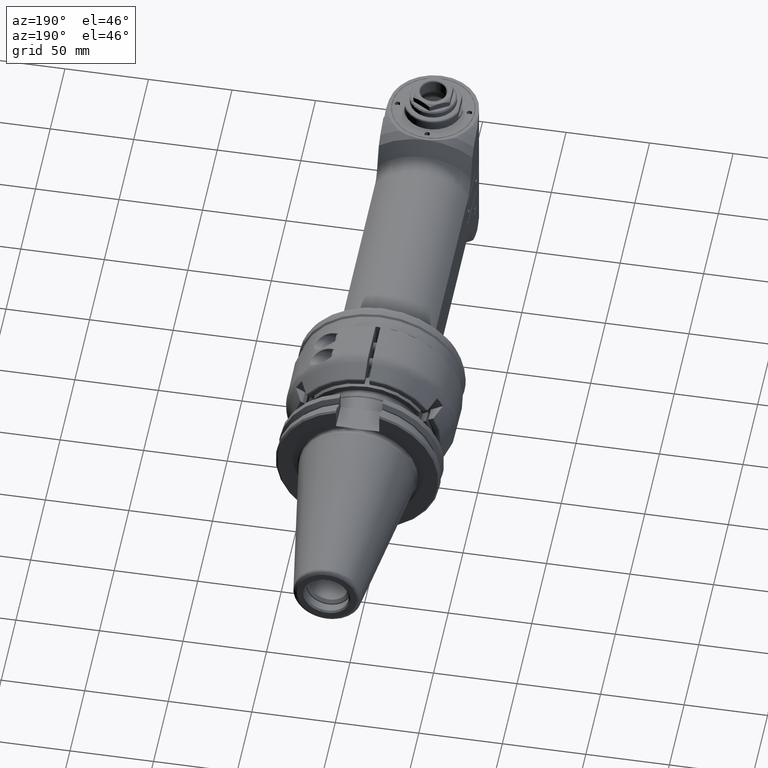
[diagram: clean part render]
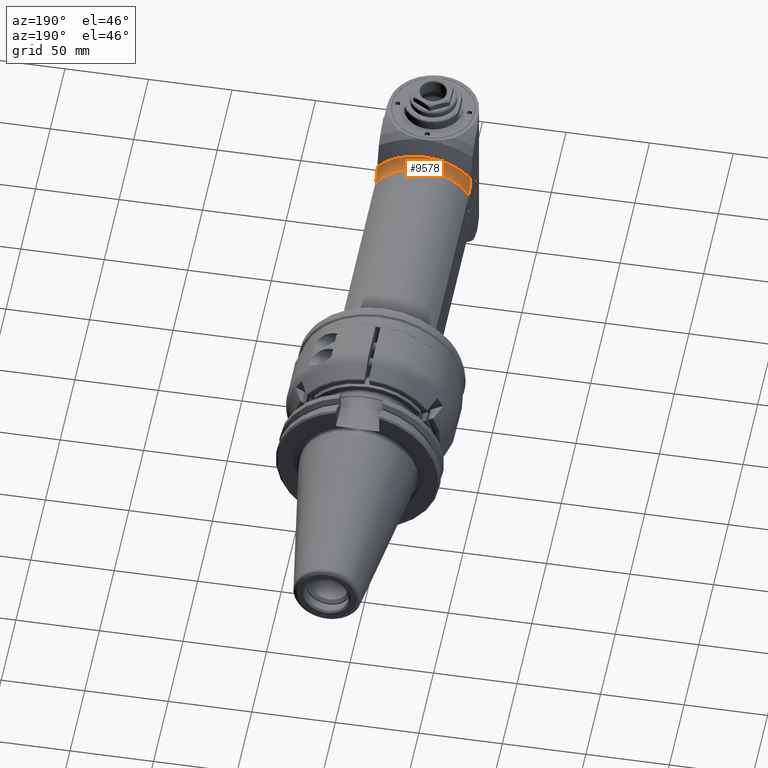
[diagram: same view with one face highlighted and labeled with its STEP entity id]
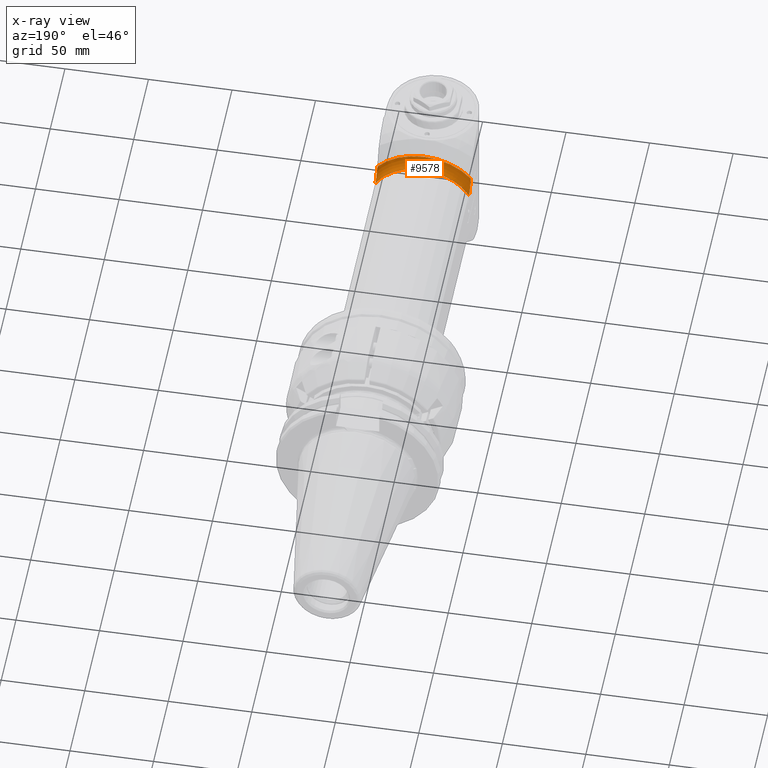
[diagram: x-ray of the same camera — body ghosted, the highlighted face saturated]
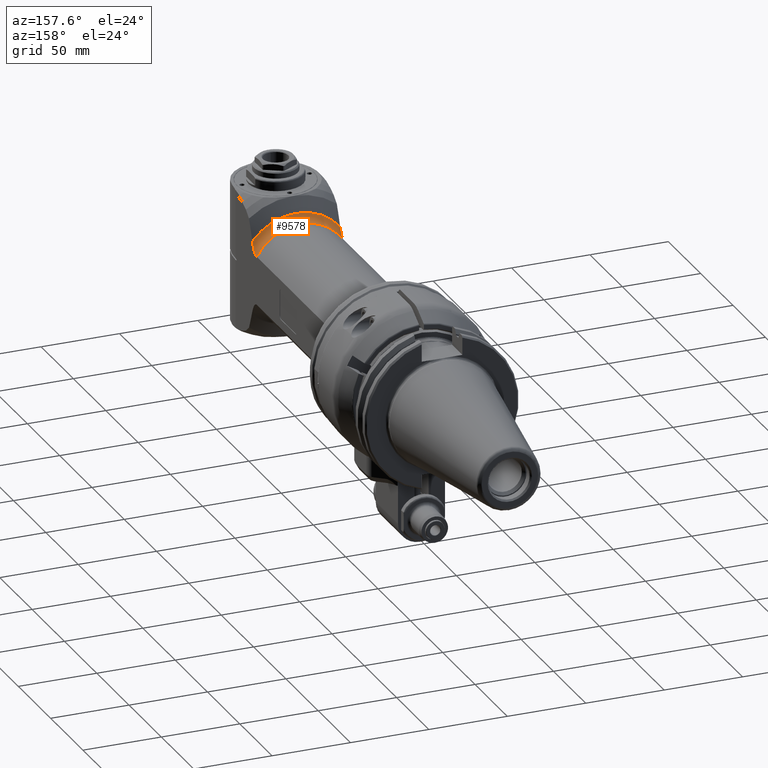
[diagram: same view with one face highlighted and labeled with its STEP entity id]
A machine part, auxiliary view. The second image highlights one B-rep face of the part: STEP entity #9578.
The next image is the same camera in x-ray: the body ghosted, the highlighted face saturated — about 0% of this face is hidden behind the body in this view.
A second angle (auxiliary view) of the same face is appended — the face is thin or edge-on in the first view.
In plain terms, the highlighted toroidal blend (fillet) surface has major radius 40 mm and minor (blend) radius 8 mm.
Its self-contained STEP definition (entity closure, byte-faithful):
#192=TOROIDAL_SURFACE('',#10305,40.,8.);
#396=B_SPLINE_CURVE_WITH_KNOTS('',3,(#14578,#14579,#14580,#14581,#14582,
#14583,#14584,#14585,#14586,#14587,#14588,#14589,#14590,#14591),
 .UNSPECIFIED.,.F.,.F.,(4,2,2,2,2,2,4),(-3.92307824233944,-3.77852981809237,
-3.54200246554002,-3.36008479279991,-3.17816712005981,-3.04857089918351,
-2.93597407218818),.UNSPECIFIED.);
#405=B_SPLINE_CURVE_WITH_KNOTS('',3,(#14745,#14746,#14747,#14748,#14749,
#14750,#14751,#14752,#14753,#14754,#14755,#14756,#14757,#14758),
 .UNSPECIFIED.,.F.,.F.,(4,2,2,2,2,2,4),(2.93597407218818,3.04857089918351,
3.17816712005981,3.36008479279991,3.54200246554002,3.77852981809237,3.92307824233944),
 .UNSPECIFIED.);
#778=CIRCLE('',#10304,32.);
#779=CIRCLE('',#10306,36.);
#1340=FACE_OUTER_BOUND('',#1937,.T.);
#1937=EDGE_LOOP('',(#6415,#6416,#6417,#6418));
#3942=VERTEX_POINT('',#14575);
#3943=VERTEX_POINT('',#14577);
#3967=VERTEX_POINT('',#14739);
#3968=VERTEX_POINT('',#14743);
#4902=EDGE_CURVE('',#3943,#3942,#396,.T.);
#4931=EDGE_CURVE('',#3942,#3967,#778,.T.);
#4932=EDGE_CURVE('',#3968,#3943,#779,.T.);
#4933=EDGE_CURVE('',#3967,#3968,#405,.T.);
#6415=ORIENTED_EDGE('',*,*,#4932,.T.);
#6416=ORIENTED_EDGE('',*,*,#4902,.T.);
#6417=ORIENTED_EDGE('',*,*,#4931,.T.);
#6418=ORIENTED_EDGE('',*,*,#4933,.T.);
#9578=ADVANCED_FACE('',(#1340),#192,.F.);
#10304=AXIS2_PLACEMENT_3D('',#14741,#11535,#11536);
#10305=AXIS2_PLACEMENT_3D('',#14742,#11537,#11538);
#10306=AXIS2_PLACEMENT_3D('',#14744,#11539,#11540);
#11535=DIRECTION('center_axis',(1.,0.,0.));
#11536=DIRECTION('ref_axis',(0.,-1.,0.));
#11537=DIRECTION('center_axis',(1.,0.,0.));
#11538=DIRECTION('ref_axis',(0.,-1.,0.));
#11539=DIRECTION('center_axis',(-1.,0.,0.));
#11540=DIRECTION('ref_axis',(0.,-0.628539361054693,-0.777777777777791));
#14575=CARTESIAN_POINT('',(151.3811978465,-15.49193338483,28.));
#14577=CARTESIAN_POINT('',(158.3094010768,-22.62741699797,28.));
#14578=CARTESIAN_POINT('Ctrl Pts',(158.309401076779,-22.6274169979778,28.));
#14579=CARTESIAN_POINT('Ctrl Pts',(158.135199044939,-22.1473726465425,28.));
#14580=CARTESIAN_POINT('Ctrl Pts',(157.934574124956,-21.6588360308148,28.));
#14581=CARTESIAN_POINT('Ctrl Pts',(157.347305959135,-20.3989143849032,28.));
#14582=CARTESIAN_POINT('Ctrl Pts',(156.921636569653,-19.6460707325903,28.));
#14583=CARTESIAN_POINT('Ctrl Pts',(156.138105696561,-18.4921239661789,28.));
#14584=CARTESIAN_POINT('Ctrl Pts',(155.730416567205,-17.9652022129463,28.));
#14585=CARTESIAN_POINT('Ctrl Pts',(154.820668957897,-17.0081024201193,28.));
#14586=CARTESIAN_POINT('Ctrl Pts',(154.317498824133,-16.5789816504194,28.));
#14587=CARTESIAN_POINT('Ctrl Pts',(153.440239087809,-16.0234209939818,28.));
#14588=CARTESIAN_POINT('Ctrl Pts',(152.973572826115,-15.7977099228234,28.));
#14589=CARTESIAN_POINT('Ctrl Pts',(152.201408747019,-15.5620993782773,28.));
#14590=CARTESIAN_POINT('Ctrl Pts',(151.756520603151,-15.4919333848297,28.));
#14591=CARTESIAN_POINT('Ctrl Pts',(151.3811978465,-15.4919333848297,28.));
#14739=CARTESIAN_POINT('',(151.3811978465,-15.49193338483,-28.));
#14741=CARTESIAN_POINT('Origin',(151.3811978465,0.,0.));
#14742=CARTESIAN_POINT('Origin',(151.3811978465,0.,0.));
#14743=CARTESIAN_POINT('',(158.3094010768,-22.62741699797,-28.));
#14744=CARTESIAN_POINT('Origin',(158.3094010768,0.,0.));
#14745=CARTESIAN_POINT('Ctrl Pts',(151.3811978465,-15.4919333848297,-28.));
#14746=CARTESIAN_POINT('Ctrl Pts',(151.756520603151,-15.4919333848297,-28.));
#14747=CARTESIAN_POINT('Ctrl Pts',(152.201408747019,-15.5620993782773,-28.));
#14748=CARTESIAN_POINT('Ctrl Pts',(152.973572826116,-15.7977099228234,-28.));
#14749=CARTESIAN_POINT('Ctrl Pts',(153.440239087809,-16.0234209939818,-28.));
#14750=CARTESIAN_POINT('Ctrl Pts',(154.317498824133,-16.5789816504194,-28.));
#14751=CARTESIAN_POINT('Ctrl Pts',(154.820668957897,-17.0081024201193,-28.));
#14752=CARTESIAN_POINT('Ctrl Pts',(155.730416567205,-17.9652022129463,-28.));
#14753=CARTESIAN_POINT('Ctrl Pts',(156.138105696561,-18.492123966179,-28.));
#14754=CARTESIAN_POINT('Ctrl Pts',(156.921636569653,-19.6460707325903,-28.));
#14755=CARTESIAN_POINT('Ctrl Pts',(157.347305959135,-20.3989143849032,-28.));
#14756=CARTESIAN_POINT('Ctrl Pts',(157.934574124956,-21.6588360308148,-28.));
#14757=CARTESIAN_POINT('Ctrl Pts',(158.135199044939,-22.1473726465425,-28.));
#14758=CARTESIAN_POINT('Ctrl Pts',(158.309401076779,-22.6274169979778,-28.));